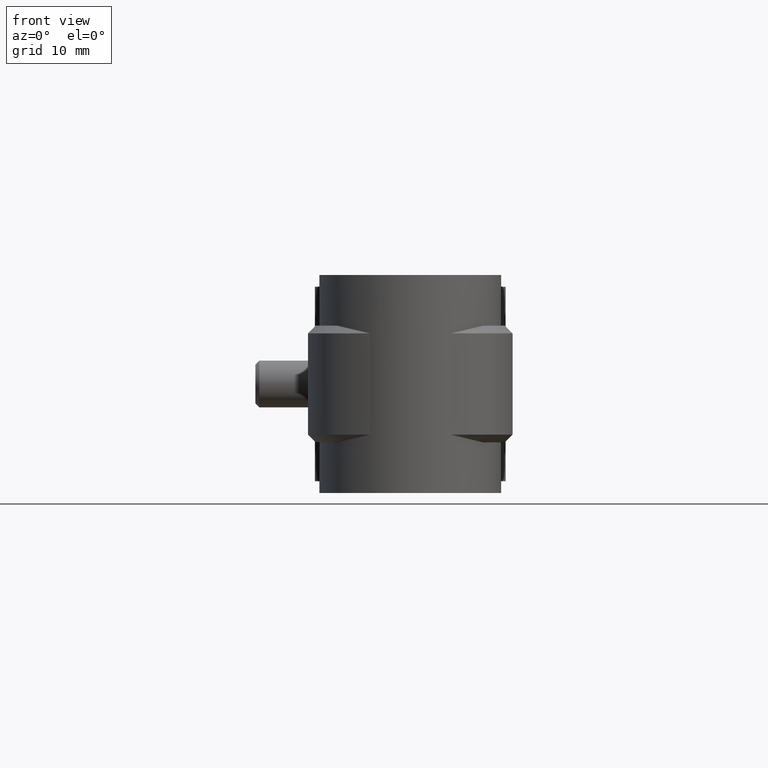
[diagram: clean part render]
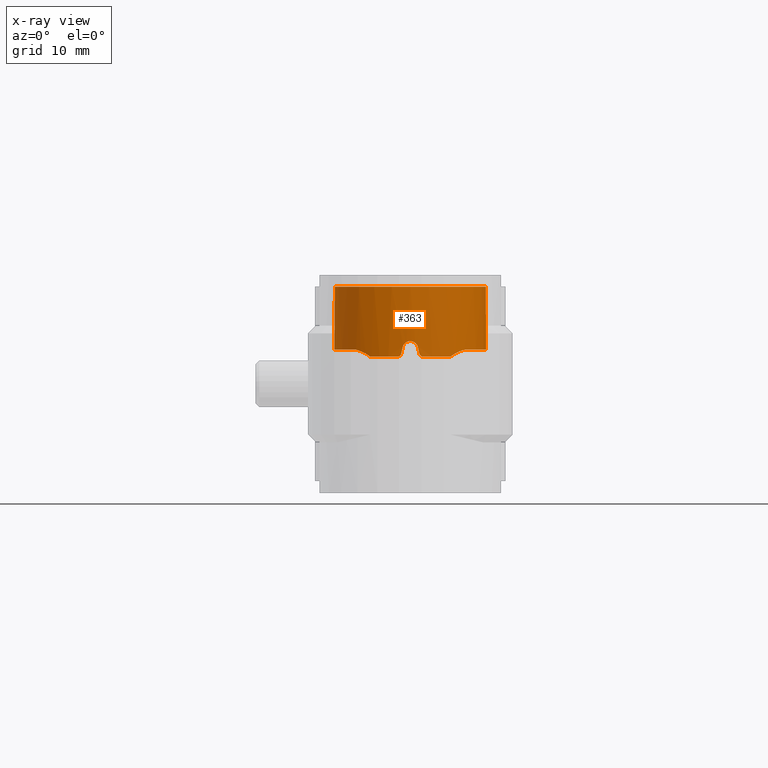
[diagram: x-ray — body ghosted, one internal face saturated and labeled with its STEP entity id]
A machine part, front view, then the same camera in x-ray: the body is ghosted and one INTERNAL B-rep face — a face not visible from any outside direction — is saturated and labeled: STEP entity #363.
In plain terms, the highlighted cylindrical surface (partial cylindrical patch) has radius 9.74 mm, axis along (0, 0, 1).
Its self-contained STEP definition (entity closure, byte-faithful):
#363 = ADVANCED_FACE( '', ( #693 ), #694, .T. );
#693 = FACE_OUTER_BOUND( '', #1398, .T. );
#694 = CYLINDRICAL_SURFACE( '', #1399, 9.74000000000000 );
#1398 = EDGE_LOOP( '', ( #2811, #2812, #2813, #2814, #2815, #2816, #2817, #2818, #2819, #2820, #2821, #2822, #2823, #2824, #2825, #2826 ) );
#1399 = AXIS2_PLACEMENT_3D( '', #2827, #2828, #2829 );
#2811 = ORIENTED_EDGE( '', *, *, #6518, .F. );
#2812 = ORIENTED_EDGE( '', *, *, #6519, .T. );
#2813 = ORIENTED_EDGE( '', *, *, #6520, .T. );
#2814 = ORIENTED_EDGE( '', *, *, #6521, .F. );
#2815 = ORIENTED_EDGE( '', *, *, #6522, .F. );
#2816 = ORIENTED_EDGE( '', *, *, #6523, .T. );
#2817 = ORIENTED_EDGE( '', *, *, #6524, .T. );
#2818 = ORIENTED_EDGE( '', *, *, #6525, .T. );
#2819 = ORIENTED_EDGE( '', *, *, #6526, .F. );
#2820 = ORIENTED_EDGE( '', *, *, #6527, .F. );
#2821 = ORIENTED_EDGE( '', *, *, #6528, .F. );
#2822 = ORIENTED_EDGE( '', *, *, #6529, .F. );
#2823 = ORIENTED_EDGE( '', *, *, #6530, .F. );
#2824 = ORIENTED_EDGE( '', *, *, #6531, .F. );
#2825 = ORIENTED_EDGE( '', *, *, #6532, .F. );
#2826 = ORIENTED_EDGE( '', *, *, #6533, .F. );
#2827 = CARTESIAN_POINT( '', ( 0.000000000000000, 0.000000000000000, 0.000000000000000 ) );
#2828 = DIRECTION( '', ( 0.000000000000000, 0.000000000000000, 1.00000000000000 ) );
#2829 = DIRECTION( '', ( 1.00000000000000, -6.12303176911189E-017, 0.000000000000000 ) );
#6518 = EDGE_CURVE( '', #7439, #7440, #7441, .T. );
#6519 = EDGE_CURVE( '', #7439, #7442, #7443, .T. );
#6520 = EDGE_CURVE( '', #7442, #7444, #7445, .T. );
#6521 = EDGE_CURVE( '', #7446, #7444, #7447, .T. );
#6522 = EDGE_CURVE( '', #7448, #7446, #7449, .F. );
#6523 = EDGE_CURVE( '', #7448, #7450, #7451, .T. );
#6524 = EDGE_CURVE( '', #7450, #7452, #7453, .T. );
#6525 = EDGE_CURVE( '', #7452, #7454, #7455, .T. );
#6526 = EDGE_CURVE( '', #7456, #7454, #7457, .T. );
#6527 = EDGE_CURVE( '', #7458, #7456, #7459, .T. );
#6528 = EDGE_CURVE( '', #7460, #7458, #7461, .T. );
#6529 = EDGE_CURVE( '', #7462, #7460, #7463, .T. );
#6530 = EDGE_CURVE( '', #7464, #7462, #7465, .T. );
#6531 = EDGE_CURVE( '', #7466, #7464, #7467, .T. );
#6532 = EDGE_CURVE( '', #7468, #7466, #7469, .T. );
#6533 = EDGE_CURVE( '', #7440, #7468, #7470, .T. );
#7439 = VERTEX_POINT( '', #8973 );
#7440 = VERTEX_POINT( '', #8974 );
#7441 = B_SPLINE_CURVE_WITH_KNOTS( '', 3, ( #8975, #8976, #8977, #8978 ), .UNSPECIFIED., .F., .F., ( 4, 4 ), ( 0.00511247518674574, 0.00528905155583519 ), .UNSPECIFIED. );
#7442 = VERTEX_POINT( '', #8979 );
#7443 = B_SPLINE_CURVE_WITH_KNOTS( '', 3, ( #8980, #8981, #8982, #8983, #8984, #8985, #8986, #8987 ), .UNSPECIFIED., .F., .F., ( 4, 2, 2, 4 ), ( 0.00165729756427079, 0.00290105319597624, 0.00352293101182897, 0.00414480882768169 ), .UNSPECIFIED. );
#7444 = VERTEX_POINT( '', #8988 );
#7445 = B_SPLINE_CURVE_WITH_KNOTS( '', 3, ( #8989, #8990, #8991, #8992, #8993, #8994, #8995, #8996, #8997, #8998, #8999, #9000, #9001, #9002, #9003, #9004, #9005, #9006, #9007, #9008, #9009, #9010, #9011, #9012, #9013, #9014 ), .UNSPECIFIED., .F., .F., ( 4, 2, 2, 2, 2, 2, 2, 2, 2, 2, 2, 2, 4 ), ( 0.000128665650344777, 0.00114666360792158, 0.00216466156549839, 0.00420065748065200, 0.00623665339580561, 0.00725465135338242, 0.00827264931095922, 0.00929064726853603, 0.0103086452261128, 0.0123446411412664, 0.0133626390988432, 0.0143806370564201, 0.0164166329715737 ), .UNSPECIFIED. );
#7446 = VERTEX_POINT( '', #9015 );
#7447 = LINE( '', #9016, #9017 );
#7448 = VERTEX_POINT( '', #9018 );
#7449 = CIRCLE( '', #9019, 9.74000000000000 );
#7450 = VERTEX_POINT( '', #9020 );
#7451 = LINE( '', #9021, #9022 );
#7452 = VERTEX_POINT( '', #9023 );
#7453 = B_SPLINE_CURVE_WITH_KNOTS( '', 3, ( #9024, #9025, #9026, #9027, #9028, #9029, #9030, #9031, #9032, #9033, #9034, #9035, #9036, #9037, #9038, #9039, #9040, #9041, #9042, #9043, #9044, #9045, #9046, #9047, #9048, #9049, #9050, #9051 ), .UNSPECIFIED., .F., .F., ( 4, 2, 2, 2, 2, 2, 2, 2, 2, 2, 2, 2, 2, 4 ), ( 0.000000000000000, 0.00203570962645634, 0.00305356443968451, 0.00407141925291268, 0.00610712887936901, 0.00712498369259718, 0.00814283850582534, 0.00916069331905351, 0.0101785481322817, 0.0122142577587380, 0.0132321125719662, 0.0142499673851943, 0.0152678221984225, 0.0162856770116507 ), .UNSPECIFIED. );
#7454 = VERTEX_POINT( '', #9052 );
#7455 = B_SPLINE_CURVE_WITH_KNOTS( '', 3, ( #9053, #9054, #9055, #9056, #9057, #9058, #9059, #9060 ), .UNSPECIFIED., .F., .F., ( 4, 2, 2, 4 ), ( 5.63355521490431E-005, 0.000684171958215715, 0.00131200836428239, 0.00256768117641573 ), .UNSPECIFIED. );
#7456 = VERTEX_POINT( '', #9061 );
#7457 = B_SPLINE_CURVE_WITH_KNOTS( '', 3, ( #9062, #9063, #9064, #9065 ), .UNSPECIFIED., .F., .F., ( 4, 4 ), ( 3.87895961444886E-018, 0.000176569787224768 ), .UNSPECIFIED. );
#7458 = VERTEX_POINT( '', #9066 );
#7459 = CIRCLE( '', #9067, 9.74000000000000 );
#7460 = VERTEX_POINT( '', #9068 );
#7461 = B_SPLINE_CURVE_WITH_KNOTS( '', 3, ( #9069, #9070, #9071, #9072, #9073, #9074 ), .UNSPECIFIED., .F., .F., ( 4, 2, 4 ), ( 1.78811203067275E-018, 0.000337975344790109, 0.000675950689580215 ), .UNSPECIFIED. );
#7462 = VERTEX_POINT( '', #9075 );
#7463 = ELLIPSE( '', #9076, 44.3711563805861, 9.74000000000000 );
#7464 = VERTEX_POINT( '', #9077 );
#7465 = B_SPLINE_CURVE_WITH_KNOTS( '', 3, ( #9078, #9079, #9080, #9081, #9082, #9083, #9084, #9085, #9086, #9087 ), .UNSPECIFIED., .F., .F., ( 4, 2, 2, 2, 4 ), ( 0.000000000000000, 0.000672051809726939, 0.00134410361945388, 0.00201615542918082, 0.00268820723890776 ), .UNSPECIFIED. );
#7466 = VERTEX_POINT( '', #9088 );
#7467 = ELLIPSE( '', #9089, 44.3711337458409, 9.74000000000000 );
#7468 = VERTEX_POINT( '', #9090 );
#7469 = B_SPLINE_CURVE_WITH_KNOTS( '', 3, ( #9091, #9092, #9093, #9094, #9095, #9096 ), .UNSPECIFIED., .F., .F., ( 4, 2, 4 ), ( 7.77003152234485E-018, 0.000337932954143210, 0.000675865908286413 ), .UNSPECIFIED. );
#7470 = CIRCLE( '', #9097, 9.74000000000000 );
#8973 = CARTESIAN_POINT( '', ( 5.15290067253365, -8.26530184925177, -9.00334139722808 ) );
#8974 = CARTESIAN_POINT( '', ( 5.00000000000000, -8.35868410696325, -9.00000000000000 ) );
#8975 = CARTESIAN_POINT( '', ( 5.15290067252648, -8.26530184924157, -9.00334139722776 ) );
#8976 = CARTESIAN_POINT( '', ( 5.10238839465895, -8.29679310695267, -9.00113261389081 ) );
#8977 = CARTESIAN_POINT( '', ( 5.05142599710824, -8.32792208961090, -8.99999999999997 ) );
#8978 = CARTESIAN_POINT( '', ( 5.00000000000000, -8.35868410696325, -8.99999999999997 ) );
#8979 = CARTESIAN_POINT( '', ( 6.95902164912058, -6.81466199124512, -8.11799656461129 ) );
#8980 = CARTESIAN_POINT( '', ( 5.15290067251874, -8.26530184924640, -9.00334139721350 ) );
#8981 = CARTESIAN_POINT( '', ( 5.44907426806424, -8.08065606770028, -8.76856680556296 ) );
#8982 = CARTESIAN_POINT( '', ( 5.75207947105307, -7.86971313882392, -8.57833081527870 ) );
#8983 = CARTESIAN_POINT( '', ( 6.20887158971729, -7.50701767445459, -8.35510613786717 ) );
#8984 = CARTESIAN_POINT( '', ( 6.36246690587964, -7.37752766765439, -8.29102575602881 ) );
#8985 = CARTESIAN_POINT( '', ( 6.66465683565369, -7.10571944833133, -8.18697797906827 ) );
#8986 = CARTESIAN_POINT( '', ( 6.81353976275909, -6.96322323417313, -8.14869550666412 ) );
#8987 = CARTESIAN_POINT( '', ( 6.95896523879892, -6.81471956907900, -8.11799635953710 ) );
#8988 = CARTESIAN_POINT( '', ( 6.01729818780882, 7.65896354077948, -8.12086241231917 ) );
#8989 = CARTESIAN_POINT( '', ( 6.95919067098811, -6.81448935759905, -8.11799709973607 ) );
#8990 = CARTESIAN_POINT( '', ( 7.19946211573696, -6.56911590273609, -8.11869935564062 ) );
#8991 = CARTESIAN_POINT( '', ( 7.42482155270500, -6.31308582106116, -8.11750239221287 ) );
#8992 = CARTESIAN_POINT( '', ( 7.84666105550342, -5.78039254321384, -8.11798463489033 ) );
#8993 = CARTESIAN_POINT( '', ( 8.04313917433545, -5.50372695296681, -8.11836586933797 ) );
#8994 = CARTESIAN_POINT( '', ( 8.58920928475247, -4.64274449705060, -8.11900401654248 ) );
#8995 = CARTESIAN_POINT( '', ( 8.89743619109403, -4.02070307979339, -8.11843008264165 ) );
#8996 = CARTESIAN_POINT( '', ( 9.36998587052904, -2.74477482073413, -8.11775880203325 ) );
#8997 = CARTESIAN_POINT( '', ( 9.53843195309941, -2.08698353733980, -8.11883913647496 ) );
#8998 = CARTESIAN_POINT( '', ( 9.68712070858722, -1.06990115408834, -8.11950834662493 ) );
#8999 = CARTESIAN_POINT( '', ( 9.71884039901968, -0.726524416825574, -8.11955266329700 ) );
#9000 = CARTESIAN_POINT( '', ( 9.74585126813842, -0.0456014164847925, -8.11923941266630 ) );
#9001 = CARTESIAN_POINT( '', ( 9.74147539217434, 0.293921268240240, -8.11888495175145 ) );
#9002 = CARTESIAN_POINT( '', ( 9.69740548047306, 0.971112493768455, -8.11821072912186 ) );
#9003 = CARTESIAN_POINT( '', ( 9.65771221961663, 1.30878108905131, -8.11792969634905 ) );
#9004 = CARTESIAN_POINT( '', ( 9.54227922223955, 1.98222614774554, -8.11809740901925 ) );
#9005 = CARTESIAN_POINT( '', ( 9.46597552632660, 2.31938436886296, -8.11841516356494 ) );
#9006 = CARTESIAN_POINT( '', ( 9.18742478873918, 3.30535502078382, -8.11906128548839 ) );
#9007 = CARTESIAN_POINT( '', ( 8.93555770435930, 3.93548479817662, -8.11883802413083 ) );
#9008 = CARTESIAN_POINT( '', ( 8.45911729182917, 4.84015419839392, -8.11805909968800 ) );
#9009 = CARTESIAN_POINT( '', ( 8.28252414688923, 5.13659995468792, -8.11778774980607 ) );
#9010 = CARTESIAN_POINT( '', ( 7.90133278100168, 5.70559423918065, -8.11805142712227 ) );
#9011 = CARTESIAN_POINT( '', ( 7.69720355035746, 5.97793831516412, -8.11870246683851 ) );
#9012 = CARTESIAN_POINT( '', ( 7.04533948353479, 6.75952273048301, -8.12065349690706 ) );
#9013 = CARTESIAN_POINT( '', ( 6.55856919469535, 7.23371160799397, -8.12159327370024 ) );
#9014 = CARTESIAN_POINT( '', ( 6.01729818780896, 7.65896354077958, -8.12086241231966 ) );
#9015 = CARTESIAN_POINT( '', ( 6.01729818780890, 7.65896354077964, 0.000000000000000 ) );
#9016 = CARTESIAN_POINT( '', ( 6.01729818780889, 7.65896354077964, 0.000000000000000 ) );
#9017 = VECTOR( '', #12519, 1000.00000000000 );
#9018 = CARTESIAN_POINT( '', ( -6.01729818780890, 7.65896354077964, 0.000000000000000 ) );
#9019 = AXIS2_PLACEMENT_3D( '', #12520, #12521, #12522 );
#9020 = CARTESIAN_POINT( '', ( -6.01729818780882, 7.65896354077948, -8.12086241231917 ) );
#9021 = CARTESIAN_POINT( '', ( -6.01729818780890, 7.65896354077964, 0.000000000000000 ) );
#9022 = VECTOR( '', #12523, 1000.00000000000 );
#9023 = CARTESIAN_POINT( '', ( -6.95902175458089, -6.81466197978690, -8.11799664381365 ) );
#9024 = CARTESIAN_POINT( '', ( -6.01729818780881, 7.65896354077948, -8.12086241231917 ) );
#9025 = CARTESIAN_POINT( '', ( -6.55856790360628, 7.23371262234354, -8.12159327195638 ) );
#9026 = CARTESIAN_POINT( '', ( -7.04559938824156, 6.75931693220312, -8.12065285765963 ) );
#9027 = CARTESIAN_POINT( '', ( -7.69800816164833, 5.97692055958461, -8.11869998916258 ) );
#9028 = CARTESIAN_POINT( '', ( -7.90234522029799, 5.70422200289576, -8.11804897837076 ) );
#9029 = CARTESIAN_POINT( '', ( -8.28396518059933, 5.13430906020513, -8.11778851272389 ) );
#9030 = CARTESIAN_POINT( '', ( -8.46008894743080, 4.83843562215688, -8.11806057312964 ) );
#9031 = CARTESIAN_POINT( '', ( -8.93597508713593, 3.93443850058371, -8.11883893756700 ) );
#9032 = CARTESIAN_POINT( '', ( -9.18788402010638, 3.30423407850028, -8.11906113461876 ) );
#9033 = CARTESIAN_POINT( '', ( -9.46654362572337, 2.31712012752649, -8.11841338666603 ) );
#9034 = CARTESIAN_POINT( '', ( -9.54272342281447, 1.98002498577867, -8.11809593807532 ) );
#9035 = CARTESIAN_POINT( '', ( -9.65790534491520, 1.30726187785697, -8.11793024589715 ) );
#9036 = CARTESIAN_POINT( '', ( -9.69753843015101, 0.969775008865527, -8.11821197108159 ) );
#9037 = CARTESIAN_POINT( '', ( -9.74151340987761, 0.292628872892920, -8.11888632849301 ) );
#9038 = CARTESIAN_POINT( '', ( -9.74585509605919, -0.0470304201823249, -8.11924067778936 ) );
#9039 = CARTESIAN_POINT( '', ( -9.71869901505161, -0.728555329841388, -8.11955298677538 ) );
#9040 = CARTESIAN_POINT( '', ( -9.68682337335513, -1.07245044347632, -8.11950732403661 ) );
#9041 = CARTESIAN_POINT( '', ( -9.53810213639688, -2.08820394521893, -8.11883701781424 ) );
#9042 = CARTESIAN_POINT( '', ( -9.36972104814378, -2.74577238211113, -8.11775842884232 ) );
#9043 = CARTESIAN_POINT( '', ( -9.01497370934746, -3.70319910933402, -8.11826349053475 ) );
#9044 = CARTESIAN_POINT( '', ( -8.87890290792454, -4.01877121997415, -8.11857003486608 ) );
#9045 = CARTESIAN_POINT( '', ( -8.57394864935323, -4.63387996446793, -8.11883484150411 ) );
#9046 = CARTESIAN_POINT( '', ( -8.40652505998381, -4.93084431672664, -8.11879077144499 ) );
#9047 = CARTESIAN_POINT( '', ( -8.04274996764083, -5.50427672069135, -8.11836517087792 ) );
#9048 = CARTESIAN_POINT( '', ( -7.84639585990168, -5.78074292730298, -8.11798423333141 ) );
#9049 = CARTESIAN_POINT( '', ( -7.42474394500355, -6.31316831178916, -8.11750240196253 ) );
#9050 = CARTESIAN_POINT( '', ( -7.19944831793022, -6.56912999353039, -8.11869931531293 ) );
#9051 = CARTESIAN_POINT( '', ( -6.95919067098807, -6.81448935759907, -8.11799709973606 ) );
#9052 = CARTESIAN_POINT( '', ( -5.15290067251414, -8.26530184925486, -9.00334139722722 ) );
#9053 = CARTESIAN_POINT( '', ( -6.95896530010645, -6.81471950647378, -8.11799634659515 ) );
#9054 = CARTESIAN_POINT( '', ( -6.81350688909388, -6.96325680634115, -8.14870245014604 ) );
#9055 = CARTESIAN_POINT( '', ( -6.66471327543450, -7.10565543609624, -8.18697551745480 ) );
#9056 = CARTESIAN_POINT( '', ( -6.36311288460083, -7.37695985065012, -8.29078640563771 ) );
#9057 = CARTESIAN_POINT( '', ( -6.20911076329466, -7.50684069542278, -8.35497046396447 ) );
#9058 = CARTESIAN_POINT( '', ( -5.75041296862249, -7.87101044844734, -8.57918286263685 ) );
#9059 = CARTESIAN_POINT( '', ( -5.44761061503819, -8.08156856415885, -8.76972703235671 ) );
#9060 = CARTESIAN_POINT( '', ( -5.15290067250838, -8.26530184925286, -9.00334139722171 ) );
#9061 = CARTESIAN_POINT( '', ( -5.00000000000005, -8.35868410696322, -9.00000000000000 ) );
#9062 = CARTESIAN_POINT( '', ( -5.00000000000005, -8.35868410696322, -8.99999999999997 ) );
#9063 = CARTESIAN_POINT( '', ( -5.05145605966114, -8.32790410678459, -8.99999999999997 ) );
#9064 = CARTESIAN_POINT( '', ( -5.10241745501398, -8.29677498963199, -9.00113388463213 ) );
#9065 = CARTESIAN_POINT( '', ( -5.15290067251135, -8.26530184925100, -9.00334139722709 ) );
#9066 = CARTESIAN_POINT( '', ( -1.65000000000003, -9.59922392696409, -9.00000000000000 ) );
#9067 = AXIS2_PLACEMENT_3D( '', #12524, #12525, #12526 );
#9068 = CARTESIAN_POINT( '', ( -1.16219512100914, -9.67041377091500, -8.60975609337373 ) );
#9069 = CARTESIAN_POINT( '', ( -1.16219512100915, -9.67041377091500, -8.60975609337372 ) );
#9070 = CARTESIAN_POINT( '', ( -1.18727375212526, -9.66739980859496, -8.72121668057950 ) );
#9071 = CARTESIAN_POINT( '', ( -1.24993415724792, -9.65988111351269, -8.82066197873394 ) );
#9072 = CARTESIAN_POINT( '', ( -1.42754791561315, -9.63523458319946, -8.96194356072408 ) );
#9073 = CARTESIAN_POINT( '', ( -1.53740204368782, -9.61857826532818, -8.99999999999994 ) );
#9074 = CARTESIAN_POINT( '', ( -1.65000000000003, -9.59922392696409, -8.99999999999994 ) );
#9075 = CARTESIAN_POINT( '', ( -0.975610000000024, -9.69101569124207, -7.78048800000004 ) );
#9076 = AXIS2_PLACEMENT_3D( '', #12527, #12528, #12529 );
#9077 = CARTESIAN_POINT( '', ( 0.975609757981814, -9.69101571560642, -7.78048781325256 ) );
#9078 = CARTESIAN_POINT( '', ( 0.975609757981816, -9.69101571560642, -7.78048781325256 ) );
#9079 = CARTESIAN_POINT( '', ( 0.925736317332277, -9.69603655313158, -7.55882816720831 ) );
#9080 = CARTESIAN_POINT( '', ( 0.801970009199494, -9.70855138127401, -7.36098304572832 ) );
#9081 = CARTESIAN_POINT( '', ( 0.447591118593249, -9.73133022813681, -7.07741626041991 ) );
#9082 = CARTESIAN_POINT( '', ( 0.227250466399519, -9.74000009858714, -6.99999905905285 ) );
#9083 = CARTESIAN_POINT( '', ( -0.227258917249933, -9.73999990141103, -7.00000093409708 ) );
#9084 = CARTESIAN_POINT( '', ( -0.447787378928190, -9.73131929998031, -7.07753890539982 ) );
#9085 = CARTESIAN_POINT( '', ( -0.801958240302645, -9.70855044976887, -7.36100772477569 ) );
#9086 = CARTESIAN_POINT( '', ( -0.925736493757280, -9.69603653662873, -7.55882786430924 ) );
#9087 = CARTESIAN_POINT( '', ( -0.975610000000024, -9.69101569124207, -7.78048800000004 ) );
#9088 = CARTESIAN_POINT( '', ( 1.16219499999999, -9.67041378545794, -8.60975599999999 ) );
#9089 = AXIS2_PLACEMENT_3D( '', #12530, #12531, #12532 );
#9090 = CARTESIAN_POINT( '', ( 1.64999999999995, -9.59922392696411, -9.00000000000000 ) );
#9091 = CARTESIAN_POINT( '', ( 1.64999999999995, -9.59922392696411, -8.99999999999995 ) );
#9092 = CARTESIAN_POINT( '', ( 1.53740181557159, -9.61857830453883, -9.00000000048322 ) );
#9093 = CARTESIAN_POINT( '', ( 1.42754074627650, -9.63523539541048, -8.96193065177298 ) );
#9094 = CARTESIAN_POINT( '', ( 1.24998026664616, -9.65987489775338, -8.82070593205110 ) );
#9095 = CARTESIAN_POINT( '', ( 1.18727373173841, -9.66739981136341, -8.72121703218233 ) );
#9096 = CARTESIAN_POINT( '', ( 1.16219499999999, -9.67041378545794, -8.60975599999999 ) );
#9097 = AXIS2_PLACEMENT_3D( '', #12533, #12534, #12535 );
#12519 = DIRECTION( '', ( 0.000000000000000, 0.000000000000000, -1.00000000000000 ) );
#12520 = CARTESIAN_POINT( '', ( 0.000000000000000, 0.000000000000000, 0.000000000000000 ) );
#12521 = DIRECTION( '', ( 0.000000000000000, 0.000000000000000, -1.00000000000000 ) );
#12522 = DIRECTION( '', ( -1.00000000000000, 0.000000000000000, 0.000000000000000 ) );
#12523 = DIRECTION( '', ( 0.000000000000000, 0.000000000000000, -1.00000000000000 ) );
#12524 = CARTESIAN_POINT( '', ( 0.000000000000000, 0.000000000000000, -9.00000000000000 ) );
#12525 = DIRECTION( '', ( 6.12303176911189E-017, -3.56070223424702E-017, -1.00000000000000 ) );
#12526 = DIRECTION( '', ( -1.00000000000000, 0.000000000000000, -6.12303176911189E-017 ) );
#12527 = CARTESIAN_POINT( '', ( 0.000000000000000, 0.000000000000000, -3.44443890776447 ) );
#12528 = DIRECTION( '', ( 0.975609806487711, -3.70563945908342E-017, -0.219511971165610 ) );
#12529 = DIRECTION( '', ( -0.219511971165610, 8.33767984580742E-018, -0.975609806487711 ) );
#12530 = CARTESIAN_POINT( '', ( 0.000000000000000, 0.000000000000000, -3.44444212055029 ) );
#12531 = DIRECTION( '', ( -0.975609781292647, 2.14240545250314E-017, -0.219512083143762 ) );
#12532 = DIRECTION( '', ( 0.219512083143762, -4.82040968464266E-018, -0.975609781292647 ) );
#12533 = CARTESIAN_POINT( '', ( 0.000000000000000, 0.000000000000000, -9.00000000000000 ) );
#12534 = DIRECTION( '', ( 6.12303176911189E-017, -3.56070223424702E-017, -1.00000000000000 ) );
#12535 = DIRECTION( '', ( -1.00000000000000, 0.000000000000000, -6.12303176911189E-017 ) );